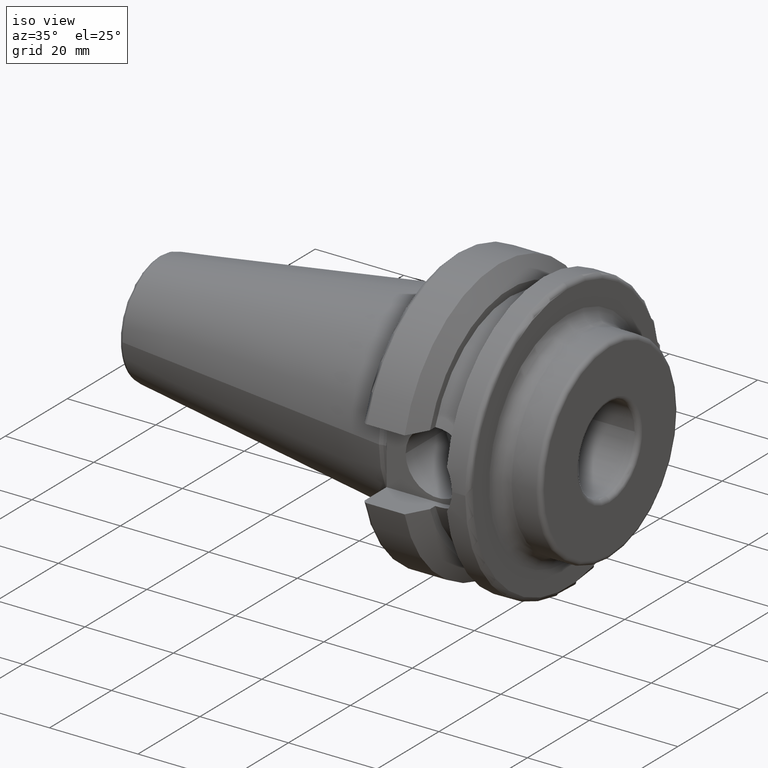
[diagram: clean part render]
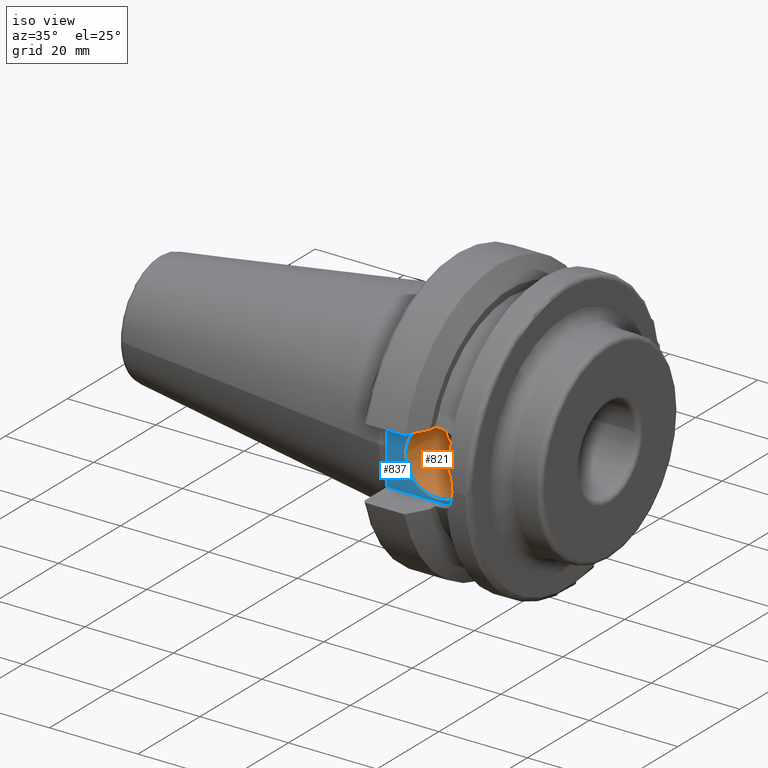
[diagram: same view with the hole feature highlighted: cylindrical wall and planar end face, labeled with their STEP entity ids]
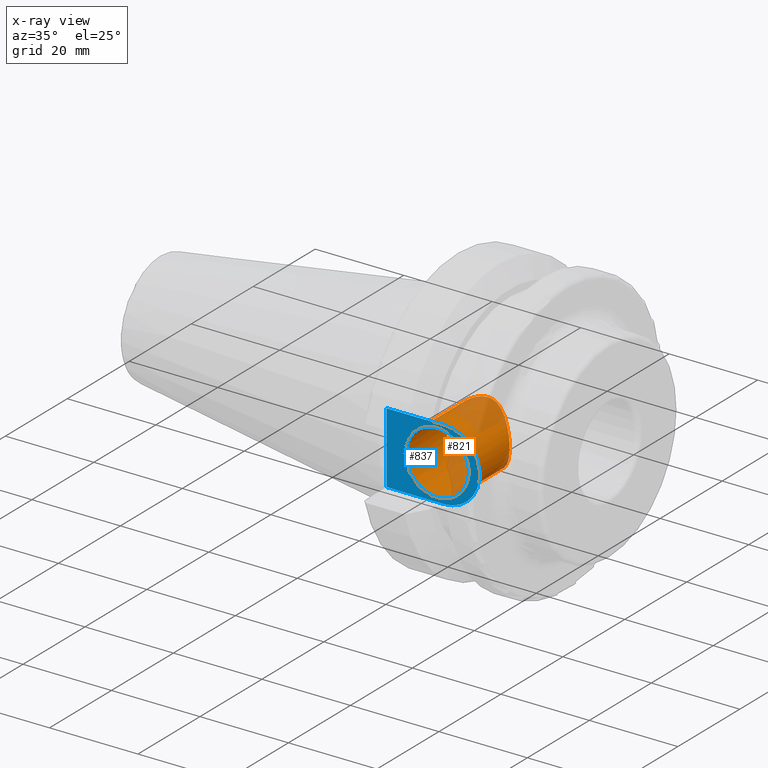
[diagram: x-ray of the same camera — body ghosted, the hole faces saturated]
A machine part, iso view. The highlighted faces form one hole feature of diameter 14.351 mm: the cylindrical wall (entity #821, orange) and its adjacent planar end face (entity #837, blue) — they share a circular edge in the B-rep.
The next image is the same camera in x-ray (body ghosted, the hole faces saturated) — the bore reads through the body.
Wall:
#46=B_SPLINE_CURVE_WITH_KNOTS('',3,(#1289,#1290,#1291,#1292,#1293,#1294,
#1295,#1296,#1297,#1298,#1299,#1300),.UNSPECIFIED.,.F.,.F.,(4,2,2,2,2,4),
(0.,0.144698250998677,0.289396501997354,0.578793003994708,0.861943035234953,
1.1450930664752),.UNSPECIFIED.);
#47=B_SPLINE_CURVE_WITH_KNOTS('',3,(#1301,#1302,#1303,#1304,#1305,#1306,
#1307,#1308,#1309,#1310,#1311,#1312,#1313,#1314,#1315,#1316,#1317,#1318,
#1319,#1320,#1321,#1322,#1323,#1324,#1325,#1326,#1327,#1328,#1329,#1330,
#1331,#1332),.UNSPECIFIED.,.F.,.F.,(4,2,2,2,2,2,2,2,2,2,2,2,2,2,2,4),(1.1450930664752,
1.42824309771544,1.71139312895569,2.00078963095304,2.14548788195172,2.2901861329504,
2.43488438394907,2.57958263494775,2.8689791369451,3.15212916818535,3.43527919942559,
3.71842923066584,4.00157926190608,4.29097576390344,4.43567401490212,4.58037226590079),
 .UNSPECIFIED.);
#83=FACE_OUTER_BOUND('',#134,.T.);
#134=EDGE_LOOP('',(#556,#557,#558,#559,#560));
#194=LINE('',#1287,#238);
#238=VECTOR('',#1020,7.1755);
#283=CIRCLE('',#898,7.1755);
#344=VERTEX_POINT('',#1284);
#345=VERTEX_POINT('',#1286);
#346=VERTEX_POINT('',#1288);
#428=EDGE_CURVE('',#344,#344,#283,.T.);
#429=EDGE_CURVE('',#344,#345,#194,.T.);
#430=EDGE_CURVE('',#346,#345,#46,.T.);
#431=EDGE_CURVE('',#345,#346,#47,.T.);
#556=ORIENTED_EDGE('',*,*,#428,.F.);
#557=ORIENTED_EDGE('',*,*,#429,.T.);
#558=ORIENTED_EDGE('',*,*,#430,.F.);
#559=ORIENTED_EDGE('',*,*,#431,.F.);
#560=ORIENTED_EDGE('',*,*,#429,.F.);
#804=CYLINDRICAL_SURFACE('',#897,7.1755);
#821=ADVANCED_FACE('',(#83),#804,.F.);
#897=AXIS2_PLACEMENT_3D('',#1283,#1016,#1017);
#898=AXIS2_PLACEMENT_3D('',#1285,#1018,#1019);
#1016=DIRECTION('center_axis',(0.,-1.,0.));
#1017=DIRECTION('ref_axis',(1.,0.,8.57315076930623E-17));
#1018=DIRECTION('center_axis',(0.,1.,0.));
#1019=DIRECTION('ref_axis',(1.,0.,8.57315076930623E-17));
#1020=DIRECTION('',(0.,1.,0.));
#1283=CARTESIAN_POINT('Origin',(13.48,112.820774336093,2.22044604925031E-15));
#1284=CARTESIAN_POINT('',(6.30449999999999,-22.6,7.26534305070561E-16));
#1285=CARTESIAN_POINT('Origin',(13.48,-22.6,2.22044604925031E-15));
#1286=CARTESIAN_POINT('',(6.30449999999999,-9.525,7.79600786769714E-16));
#1287=CARTESIAN_POINT('',(6.30449999999999,112.820774336093,7.26534305070561E-16));
#1288=CARTESIAN_POINT('',(13.48,-6.26401027697113,7.1755));
#1289=CARTESIAN_POINT('Ctrl Pts',(13.48,-6.26401027697113,7.1755));
#1290=CARTESIAN_POINT('Ctrl Pts',(12.9976724966711,-6.26401027697113,7.1755));
#1291=CARTESIAN_POINT('Ctrl Pts',(12.5138817864419,-6.3214300716154,7.12639516897826));
#1292=CARTESIAN_POINT('Ctrl Pts',(11.5719201774943,-6.53206413620659,6.93383906269396));
#1293=CARTESIAN_POINT('Ctrl Pts',(11.1135161621439,-6.68433612256235,6.79049865656369));
#1294=CARTESIAN_POINT('Ctrl Pts',(9.80832777096971,-7.21720628066741,6.23698013972661));
#1295=CARTESIAN_POINT('Ctrl Pts',(9.02933468430858,-7.66888180360497,5.69702410111674));
#1296=CARTESIAN_POINT('Ctrl Pts',(7.79642689717158,-8.4449004362381,4.46411631397973));
#1297=CARTESIAN_POINT('Ctrl Pts',(7.24846478766795,-8.83197757623815,3.68359990675617));
#1298=CARTESIAN_POINT('Ctrl Pts',(6.50162991927386,-9.37387029886955,1.92439466781674));
#1299=CARTESIAN_POINT('Ctrl Pts',(6.30449999999999,-9.525,0.943833437467484));
#1300=CARTESIAN_POINT('Ctrl Pts',(6.30449999999999,-9.525,8.32667268468867E-16));
#1301=CARTESIAN_POINT('Ctrl Pts',(6.30449999999999,-9.525,8.32667268468867E-16));
#1302=CARTESIAN_POINT('Ctrl Pts',(6.30449999999999,-9.525,-0.943833437467483));
#1303=CARTESIAN_POINT('Ctrl Pts',(6.50162991927386,-9.37387029886955,-1.92439466781674));
#1304=CARTESIAN_POINT('Ctrl Pts',(7.24846478766795,-8.83197757623815,-3.68359990675617));
#1305=CARTESIAN_POINT('Ctrl Pts',(7.79642689717158,-8.4449004362381,-4.46411631397973));
#1306=CARTESIAN_POINT('Ctrl Pts',(9.02933468430858,-7.66888180360497,-5.69702410111673));
#1307=CARTESIAN_POINT('Ctrl Pts',(9.80832777096971,-7.21720628066741,-6.2369801397266));
#1308=CARTESIAN_POINT('Ctrl Pts',(11.1135161621439,-6.68433612256236,-6.79049865656368));
#1309=CARTESIAN_POINT('Ctrl Pts',(11.5719201774943,-6.53206413620659,-6.93383906269396));
#1310=CARTESIAN_POINT('Ctrl Pts',(12.5138817864419,-6.32143007161541,-7.12639516897825));
#1311=CARTESIAN_POINT('Ctrl Pts',(12.9976724966711,-6.26401027697114,-7.1755));
#1312=CARTESIAN_POINT('Ctrl Pts',(13.9623275033289,-6.26401027697114,-7.1755));
#1313=CARTESIAN_POINT('Ctrl Pts',(14.4461182135581,-6.32143007161541,-7.12639516897825));
#1314=CARTESIAN_POINT('Ctrl Pts',(15.3880798225057,-6.53206413620659,-6.93383906269396));
#1315=CARTESIAN_POINT('Ctrl Pts',(15.8464838378561,-6.68433612256236,-6.79049865656368));
#1316=CARTESIAN_POINT('Ctrl Pts',(17.1516722290303,-7.21720628066741,-6.2369801397266));
#1317=CARTESIAN_POINT('Ctrl Pts',(17.9306653156914,-7.66888180360497,-5.69702410111673));
#1318=CARTESIAN_POINT('Ctrl Pts',(19.1635731028284,-8.4449004362381,-4.46411631397973));
#1319=CARTESIAN_POINT('Ctrl Pts',(19.711535212332,-8.83197757623815,-3.68359990675616));
#1320=CARTESIAN_POINT('Ctrl Pts',(20.4583700807261,-9.37387029886955,-1.92439466781674));
#1321=CARTESIAN_POINT('Ctrl Pts',(20.6555,-9.525,-0.943833437467481));
#1322=CARTESIAN_POINT('Ctrl Pts',(20.6555,-9.525,0.943833437467486));
#1323=CARTESIAN_POINT('Ctrl Pts',(20.4583700807261,-9.37387029886955,1.92439466781674));
#1324=CARTESIAN_POINT('Ctrl Pts',(19.711535212332,-8.83197757623815,3.68359990675617));
#1325=CARTESIAN_POINT('Ctrl Pts',(19.1635731028284,-8.4449004362381,4.46411631397973));
#1326=CARTESIAN_POINT('Ctrl Pts',(17.9306653156914,-7.66888180360497,5.69702410111674));
#1327=CARTESIAN_POINT('Ctrl Pts',(17.1516722290303,-7.21720628066741,6.23698013972661));
#1328=CARTESIAN_POINT('Ctrl Pts',(15.8464838378561,-6.68433612256235,6.79049865656369));
#1329=CARTESIAN_POINT('Ctrl Pts',(15.3880798225057,-6.53206413620659,6.93383906269396));
#1330=CARTESIAN_POINT('Ctrl Pts',(14.4461182135581,-6.3214300716154,7.12639516897826));
#1331=CARTESIAN_POINT('Ctrl Pts',(13.9623275033289,-6.26401027697113,7.1755));
#1332=CARTESIAN_POINT('Ctrl Pts',(13.48,-6.26401027697113,7.1755));
End face:
#32=FACE_BOUND('',#156,.T.);
#70=PLANE('',#935);
#99=FACE_OUTER_BOUND('',#155,.T.);
#155=EDGE_LOOP('',(#638,#639,#640,#641));
#156=EDGE_LOOP('',(#642));
#204=LINE('',#1413,#248);
#210=LINE('',#1469,#254);
#214=LINE('',#1491,#258);
#248=VECTOR('',#1096,10.);
#254=VECTOR('',#1108,10.);
#258=VECTOR('',#1114,10.);
#283=CIRCLE('',#898,7.1755);
#304=CIRCLE('',#933,8.05);
#344=VERTEX_POINT('',#1284);
#370=VERTEX_POINT('',#1410);
#371=VERTEX_POINT('',#1412);
#373=VERTEX_POINT('',#1423);
#382=VERTEX_POINT('',#1468);
#428=EDGE_CURVE('',#344,#344,#283,.T.);
#463=EDGE_CURVE('',#370,#371,#204,.T.);
#466=EDGE_CURVE('',#371,#373,#304,.T.);
#476=EDGE_CURVE('',#373,#382,#210,.T.);
#482=EDGE_CURVE('',#382,#370,#214,.T.);
#638=ORIENTED_EDGE('',*,*,#476,.F.);
#639=ORIENTED_EDGE('',*,*,#466,.F.);
#640=ORIENTED_EDGE('',*,*,#463,.F.);
#641=ORIENTED_EDGE('',*,*,#482,.F.);
#642=ORIENTED_EDGE('',*,*,#428,.T.);
#837=ADVANCED_FACE('',(#99,#32),#70,.F.);
#898=AXIS2_PLACEMENT_3D('',#1285,#1018,#1019);
#933=AXIS2_PLACEMENT_3D('',#1424,#1100,#1101);
#935=AXIS2_PLACEMENT_3D('',#1490,#1112,#1113);
#1018=DIRECTION('center_axis',(0.,1.,0.));
#1019=DIRECTION('ref_axis',(1.,0.,8.57315076930623E-17));
#1096=DIRECTION('',(1.,0.,8.57315076930623E-17));
#1100=DIRECTION('center_axis',(0.,1.,0.));
#1101=DIRECTION('ref_axis',(0.,0.,1.));
#1108=DIRECTION('',(-1.,0.,-8.57315076930623E-17));
#1112=DIRECTION('center_axis',(0.,1.,0.));
#1113=DIRECTION('ref_axis',(0.,0.,1.));
#1114=DIRECTION('',(0.,0.,1.));
#1284=CARTESIAN_POINT('',(6.30449999999999,-22.6,7.26534305070561E-16));
#1285=CARTESIAN_POINT('Origin',(13.48,-22.6,2.22044604925031E-15));
#1410=CARTESIAN_POINT('',(1.99999999999999,-22.6,8.05));
#1412=CARTESIAN_POINT('',(14.95,-22.6,8.05));
#1413=CARTESIAN_POINT('',(1.99999999999999,-22.6,8.05));
#1423=CARTESIAN_POINT('',(14.95,-22.6,-8.05));
#1424=CARTESIAN_POINT('Origin',(14.95,-22.6,0.));
#1468=CARTESIAN_POINT('',(1.99999999999999,-22.6,-8.05));
#1469=CARTESIAN_POINT('',(14.95,-22.6,-8.05));
#1490=CARTESIAN_POINT('Origin',(12.5,-22.6,0.));
#1491=CARTESIAN_POINT('',(1.99999999999999,-22.6,0.));